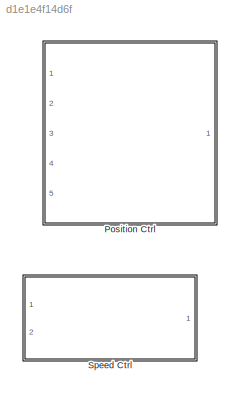
MODEL slx_d1e1e4f14d6f
KIND model
CONFIG AbsTol = auto
CONFIG FixedStep = auto
CONFIG MaxStep = auto
CONFIG MinStep = auto
CONFIG RelTol = 1e-3
CONFIG SampleTimeConstraint = Unconstrained
CONFIG Solver = VariableStepAuto
CONFIG SolverMode = Auto
CONFIG SolverName = VariableStepAuto
CONFIG StartTime = 0.0
CONFIG StopTime = 10.0
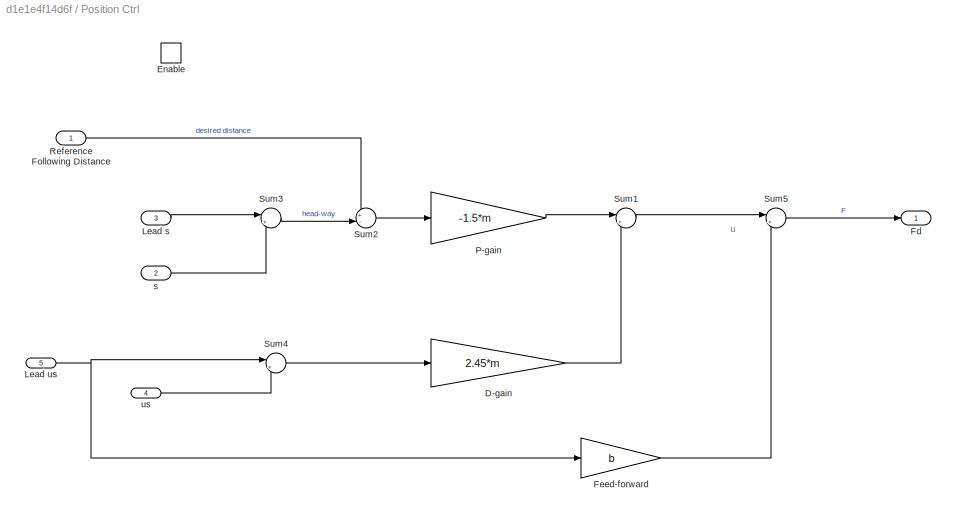
BLOCK [SubSystem] Position Ctrl
  Ports = [5, 1, 1]
  RequestExecContextInheritance = off
  TreatAsAtomicUnit = on
  Variant = off
BLOCK [Gain] Position Ctrl/D-gain
  Gain = 2.45*m
BLOCK [EnablePort] Position Ctrl/Enable
  Ports = []
BLOCK [Outport] Position Ctrl/Fd
  IconDisplay = Port number
BLOCK [Gain] Position Ctrl/Feed-forward
  Gain = b
BLOCK [Inport] Position Ctrl/Lead s
  IconDisplay = Port number
  Port = 3
BLOCK [Inport] Position Ctrl/Lead us
  IconDisplay = Port number
  Port = 5
BLOCK [Gain] Position Ctrl/P-gain
  Gain = -1.5*m
BLOCK [Inport] Position Ctrl/Reference Following Distance
  IconDisplay = Port number
BLOCK [Sum] Position Ctrl/Sum1
  IconShape = round
  InputSameDT = off
  Inputs = |++
  OutDataTypeStr = Inherit: Inherit via internal rule
  Ports = [2, 1]
BLOCK [Sum] Position Ctrl/Sum2
  IconShape = round
  InputSameDT = off
  Inputs = +-|
  OutDataTypeStr = Inherit: Inherit via internal rule
  Ports = [2, 1]
BLOCK [Sum] Position Ctrl/Sum3
  IconShape = round
  InputSameDT = off
  Inputs = |+-
  OutDataTypeStr = Inherit: Inherit via internal rule
  Ports = [2, 1]
BLOCK [Sum] Position Ctrl/Sum4
  IconShape = round
  InputSameDT = off
  Inputs = |+-
  OutDataTypeStr = Inherit: Inherit via internal rule
  Ports = [2, 1]
BLOCK [Sum] Position Ctrl/Sum5
  IconShape = round
  InputSameDT = off
  Inputs = |++
  OutDataTypeStr = single
  Ports = [2, 1]
BLOCK [Inport] Position Ctrl/s
  IconDisplay = Port number
  Port = 2
BLOCK [Inport] Position Ctrl/us
  IconDisplay = Port number
  Port = 4
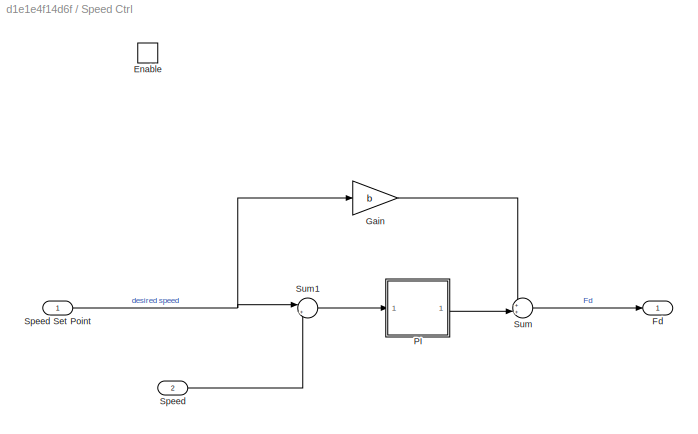
BLOCK [SubSystem] Speed Ctrl
  Ports = [2, 1, 1]
  RequestExecContextInheritance = off
  TreatAsAtomicUnit = on
  Variant = off
BLOCK [EnablePort] Speed Ctrl/Enable
  Ports = []
BLOCK [Outport] Speed Ctrl/Fd
  IconDisplay = Port number
BLOCK [Gain] Speed Ctrl/Gain
  Gain = b
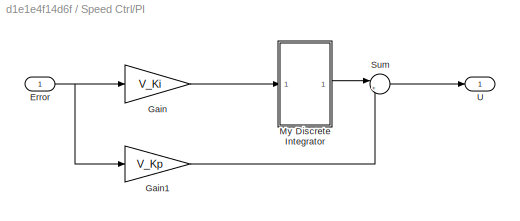
BLOCK [SubSystem] Speed Ctrl/PI
  Ports = [1, 1]
  RequestExecContextInheritance = off
  Variant = off
BLOCK [Inport] Speed Ctrl/PI/Error
  IconDisplay = Port number
BLOCK [Gain] Speed Ctrl/PI/Gain
  Gain = V_Ki
BLOCK [Gain] Speed Ctrl/PI/Gain1
  Gain = V_Kp
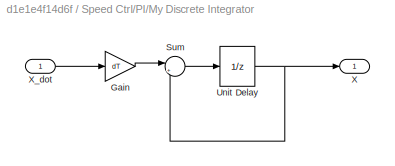
BLOCK [SubSystem] Speed Ctrl/PI/My Discrete Integrator
  Ports = [1, 1]
  RequestExecContextInheritance = off
  Variant = off
BLOCK [Gain] Speed Ctrl/PI/My Discrete Integrator/Gain
  Gain = dT
BLOCK [Sum] Speed Ctrl/PI/My Discrete Integrator/Sum
  IconShape = round
  Inputs = |++
  Ports = [2, 1]
BLOCK [UnitDelay] Speed Ctrl/PI/My Discrete Integrator/Unit Delay
  SampleTime = -1
BLOCK [Outport] Speed Ctrl/PI/My Discrete Integrator/X
  IconDisplay = Port number
BLOCK [Inport] Speed Ctrl/PI/My Discrete Integrator/X_dot
  IconDisplay = Port number
BLOCK [Sum] Speed Ctrl/PI/Sum
  IconShape = round
  InputSameDT = off
  Inputs = |++
  OutDataTypeStr = Inherit: Inherit via internal rule
  Ports = [2, 1]
BLOCK [Outport] Speed Ctrl/PI/U
  IconDisplay = Port number
BLOCK [Inport] Speed Ctrl/Speed
  IconDisplay = Port number
  Port = 2
BLOCK [Inport] Speed Ctrl/Speed Set Point
  IconDisplay = Port number
BLOCK [Sum] Speed Ctrl/Sum
  IconShape = round
  InputSameDT = off
  Inputs = ++|
  OutDataTypeStr = single
  Ports = [2, 1]
BLOCK [Sum] Speed Ctrl/Sum1
  IconShape = round
  InputSameDT = off
  Inputs = |+-
  OutDataTypeStr = Inherit: Inherit via internal rule
  Ports = [2, 1]
ANNOTATION Position Ctrl: u
LINE Position Ctrl/D-gain:1 -> Position Ctrl/Sum1:2
LINE Position Ctrl/Feed-forward:1 -> Position Ctrl/Sum5:2
LINE Position Ctrl/Lead s:1 -> Position Ctrl/Sum3:1
NET Position Ctrl/Lead us:1 -> Position Ctrl/Feed-forward:1, Position Ctrl/Sum4:1
LINE Position Ctrl/P-gain:1 -> Position Ctrl/Sum1:1
LINE Position Ctrl/Reference Following Distance:1 -> Position Ctrl/Sum2:1
LINE Position Ctrl/Sum1:1 -> Position Ctrl/Sum5:1
LINE Position Ctrl/Sum2:1 -> Position Ctrl/P-gain:1
LINE Position Ctrl/Sum3:1 -> Position Ctrl/Sum2:2
LINE Position Ctrl/Sum4:1 -> Position Ctrl/D-gain:1
LINE Position Ctrl/Sum5:1 -> Position Ctrl/Fd:1
LINE Position Ctrl/s:1 -> Position Ctrl/Sum3:2
LINE Position Ctrl/us:1 -> Position Ctrl/Sum4:2
LINE Speed Ctrl/Gain:1 -> Speed Ctrl/Sum:1
NET Speed Ctrl/PI/Error:1 -> Speed Ctrl/PI/Gain1:1, Speed Ctrl/PI/Gain:1
LINE Speed Ctrl/PI/Gain1:1 -> Speed Ctrl/PI/Sum:2
LINE Speed Ctrl/PI/Gain:1 -> Speed Ctrl/PI/My Discrete Integrator:1
LINE Speed Ctrl/PI/My Discrete Integrator/Gain:1 -> Speed Ctrl/PI/My Discrete Integrator/Sum:1
LINE Speed Ctrl/PI/My Discrete Integrator/Sum:1 -> Speed Ctrl/PI/My Discrete Integrator/Unit Delay:1
NET Speed Ctrl/PI/My Discrete Integrator/Unit Delay:1 -> Speed Ctrl/PI/My Discrete Integrator/Sum:2, Speed Ctrl/PI/My Discrete Integrator/X:1
LINE Speed Ctrl/PI/My Discrete Integrator/X_dot:1 -> Speed Ctrl/PI/My Discrete Integrator/Gain:1
LINE Speed Ctrl/PI/My Discrete Integrator:1 -> Speed Ctrl/PI/Sum:1
LINE Speed Ctrl/PI/Sum:1 -> Speed Ctrl/PI/U:1
LINE Speed Ctrl/PI:1 -> Speed Ctrl/Sum:2
NET Speed Ctrl/Speed Set Point:1 -> Speed Ctrl/Gain:1, Speed Ctrl/Sum1:1
LINE Speed Ctrl/Speed:1 -> Speed Ctrl/Sum1:2
LINE Speed Ctrl/Sum1:1 -> Speed Ctrl/PI:1
LINE Speed Ctrl/Sum:1 -> Speed Ctrl/Fd:1
note: NET lines group one-source signal fan-out (src -> all destinations, sorted); 1:1 wires keep LINE
